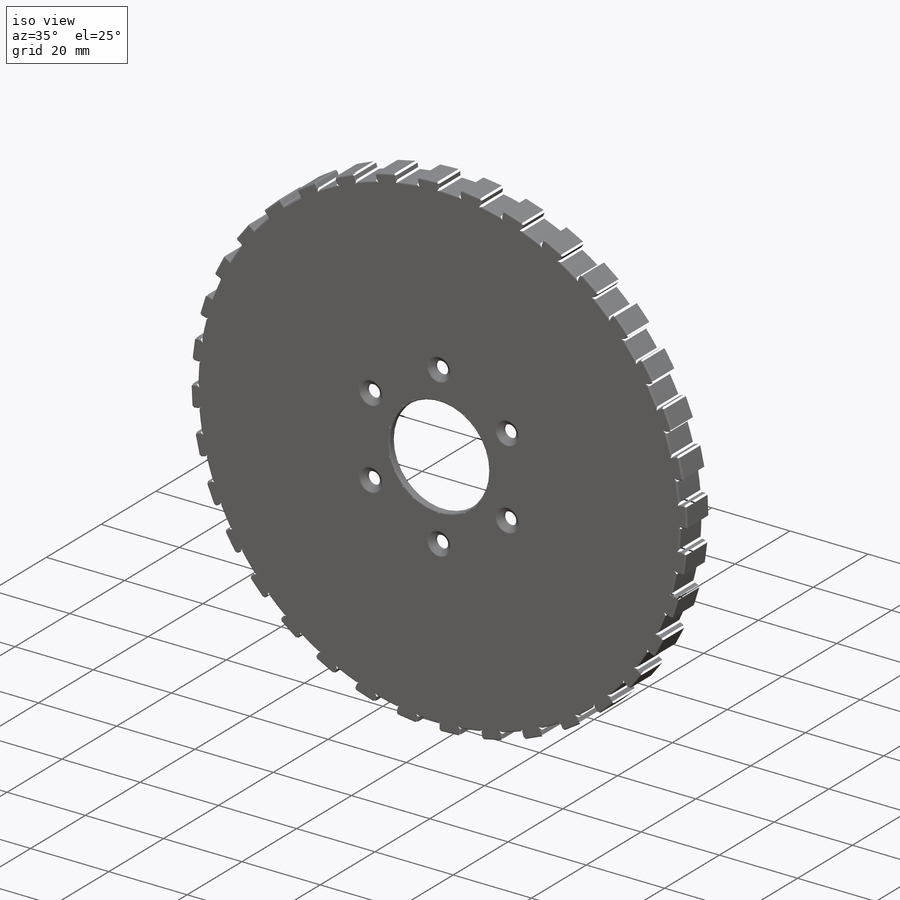
[diagram: iso view]
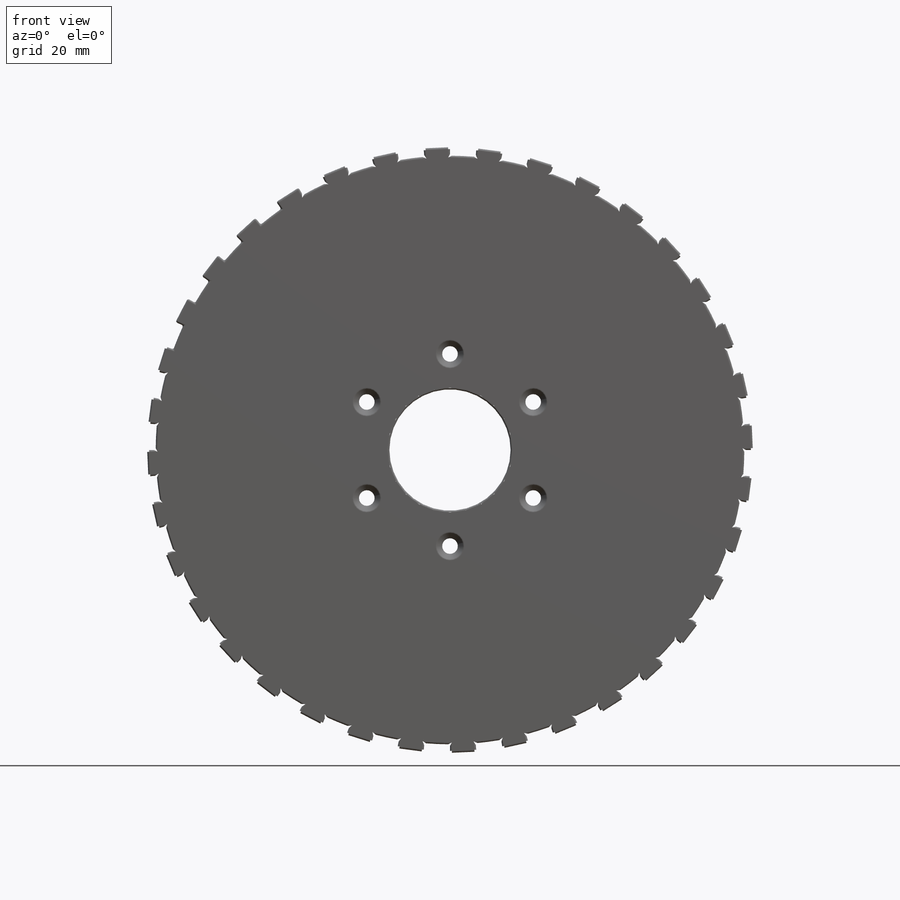
[diagram: front view]
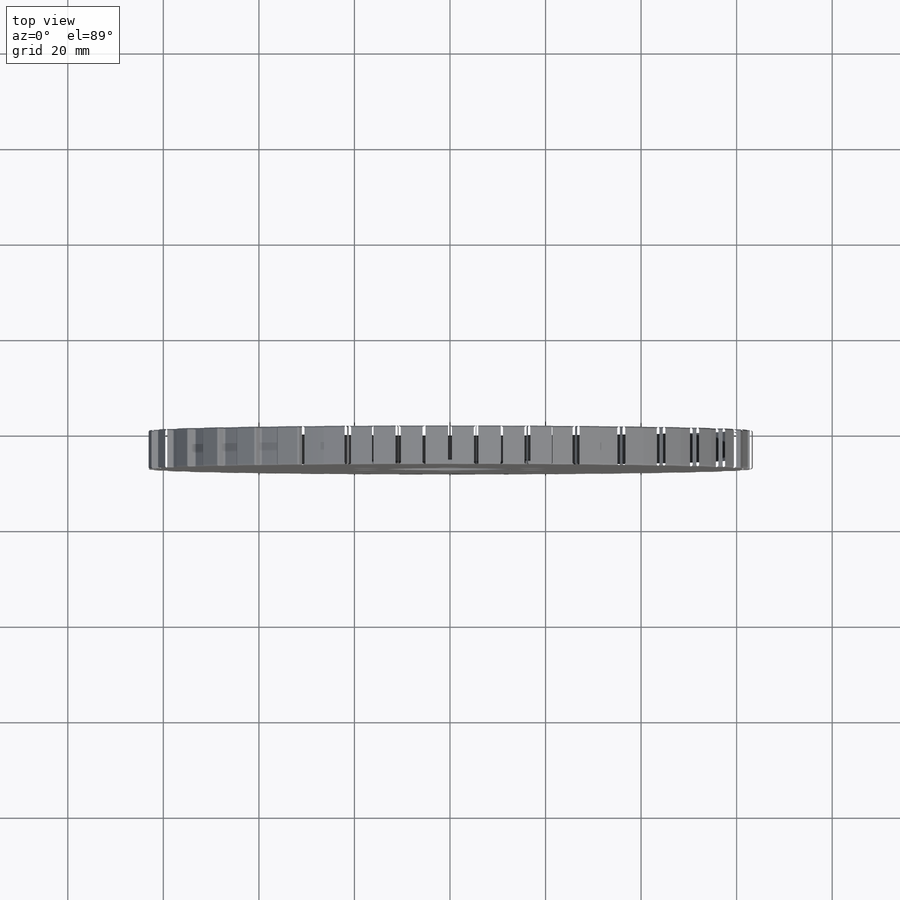
[diagram: top view]
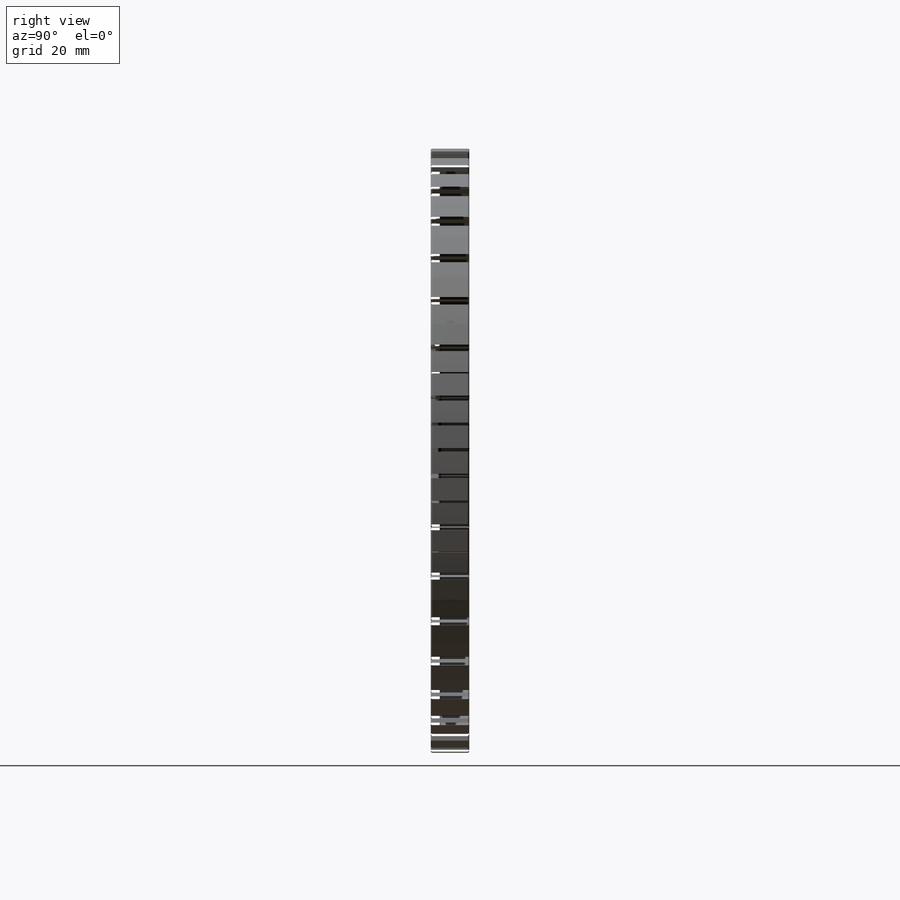
[diagram: right view]
SOLIDWORKS PART (.sldprt)
format: sldprt  version: not decoded by parser v0  size: 2,500,096 bytes
history: native  units: mm
features: sketch x6, fillet x3, cut_extrude x2, material x1, extrude x1, shell x1, hole x1 (+16 scaffold rows collapsed)
feature tree (31):
  scaffold x16  (default folders/planes/origin — collapsed)
  material  "Material <not specified>"
  sketch  "Sketch3"  dims[D1=126.746mm]
  extrude  "Extrude2"  Depth=8.0772mm
  shell  "Shell2"  Thickness=1.905mm
  sketch  "Sketch4"  dims[c1.D2=123.2027mm c1.D1=~62.823587mm c2.D1=5.0deg]
  cut_extrude  "Extrude3"  [1 undecoded]
  sketch  "Sketch5"  dims[D1=25.3746mm]
  cut_extrude  "Extrude4"  [1 undecoded]
  sketch  "Sketch6"  dims[D1=40.2209mm D2=5.6769mm]
  hole  "CSK for #4 Flat Head Machine Screw (100)1"  Diameter=3.2639mm Depth=8.0772mm
  sketch  "3DSketch2"
  sketch  "Sketch8"  dims[hole-wizard template sketch: 55 standard entries collapsed; hole parameters kept: c17.Thru Hole Depth=8.0772mm c17.Near C'Sink Dia.=5.715mm c17.D4=~3.666174mm c17.Near C'Sink Angle=100.0deg]
  fillet  "Fillet1"  Radius=0.396875mm
  fillet  "Fillet2"  Radius=0.396875mm
  fillet  "Fillet3"  Radius=0.396875mm
decode coverage: 11 of 14 modeling features carry decoded parameters
note: ~ marks probable driven/reference dimensions
note: 2 parameter values undecoded
note: suppression state not decoded; provenance and decode notes live in map.json
